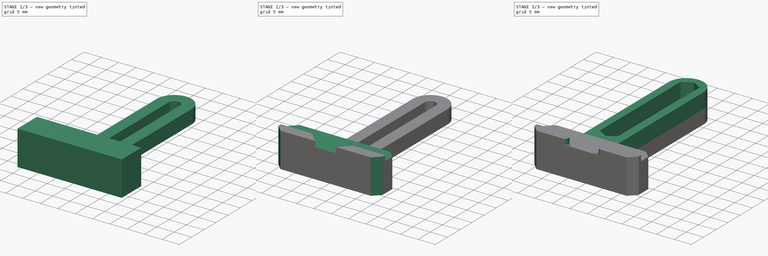
[diagram: build sequence overview — one tinted view per stage of 3, left to right]
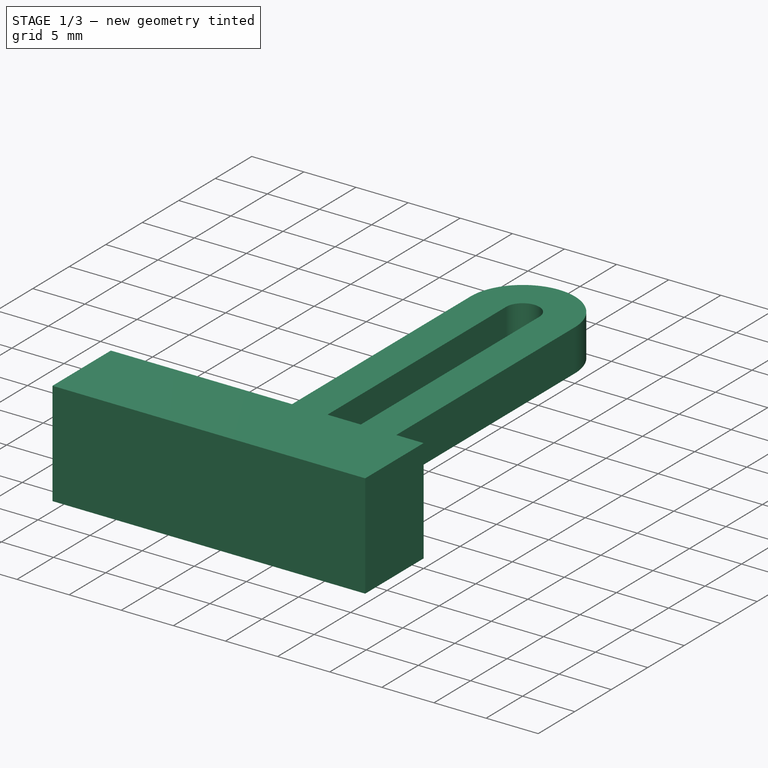
[diagram: stage 1 of 3 — iso view after this stage's code; geometry added in this stage tinted green]
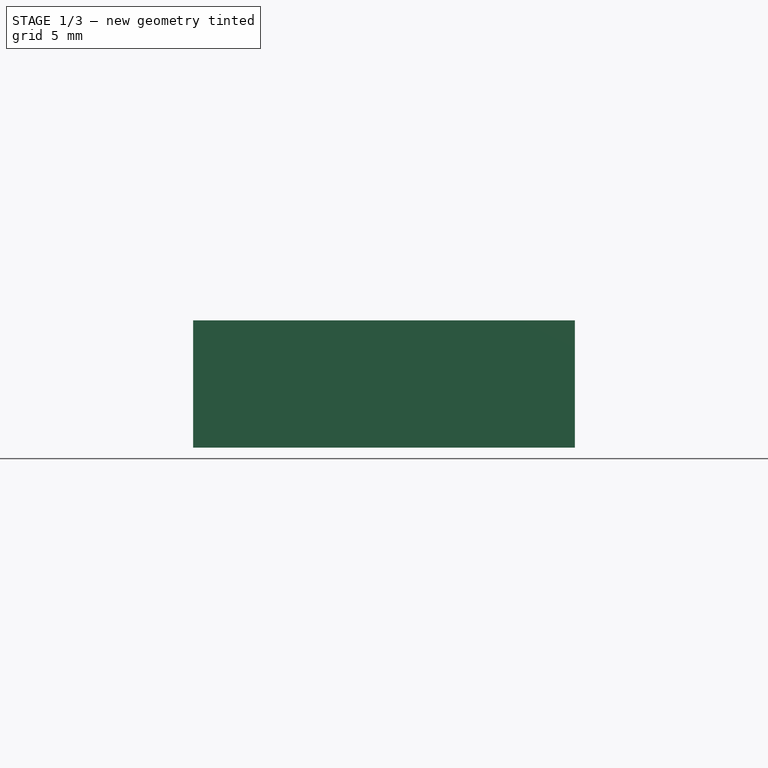
[diagram: stage 1 of 3 — front view after this stage's code; geometry added in this stage tinted green]
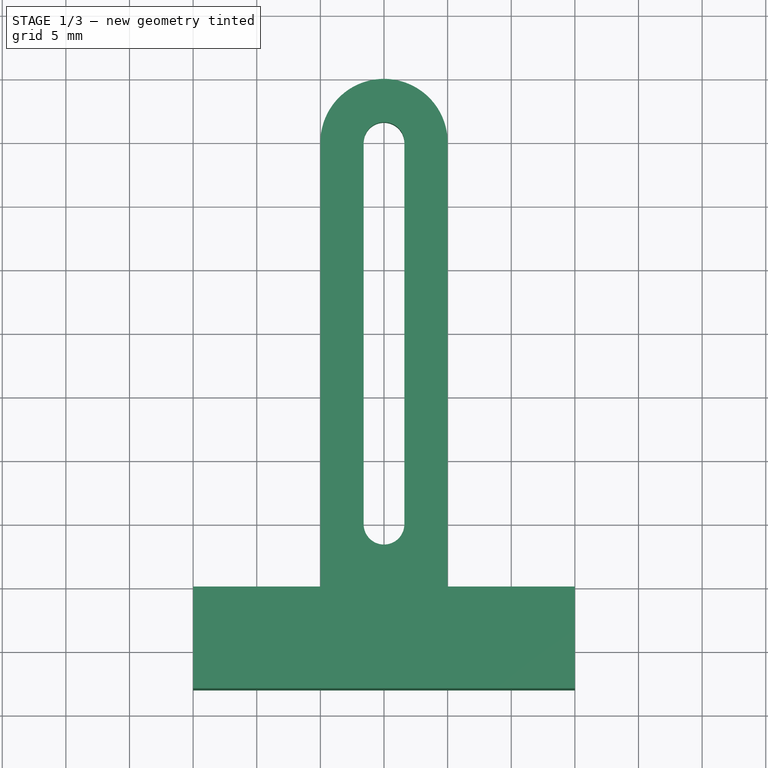
[diagram: stage 1 of 3 — top view after this stage's code; geometry added in this stage tinted green]
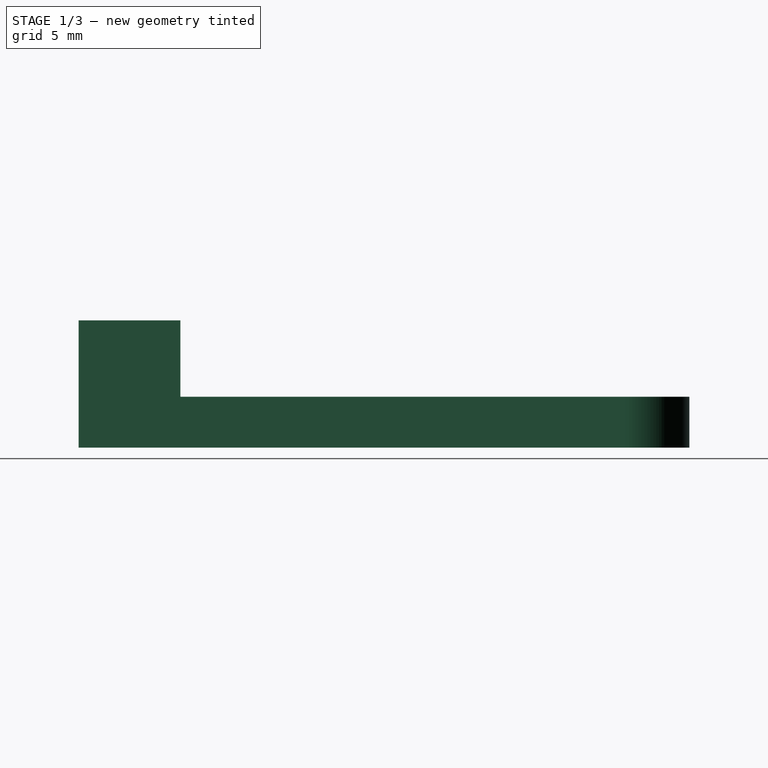
[diagram: stage 1 of 3 — right view after this stage's code; geometry added in this stage tinted green]
FCSTD DOCUMENT  (FreeCAD 0.19R24291 (Git))
Label: board-mount-static
License: All rights reserved
LicenseURL: http://en.wikipedia.org/wiki/All_rights_reserved
objects: Sketcher::SketchObject×4, PartDesign::Pad×3, PartDesign::Plane×1, PartDesign::Pocket×1, PartDesign::Chamfer×1, PartDesign::Fillet×1, PartDesign::Body×1
note: 18 computed .brp shape members not serialized (recipe doc carries the construction recipe); baked Part::Feature solids carry a one-line shape summary decoded from their .brp

FEATURE [Sketcher::SketchObject] Sketch
  FullyConstrained = true
  MapMode = 5
  Support = -> [XY_Plane]
  sketch-geometry (12):
    g0: ArcOfCircle CenterX=0 CenterY=0 CenterZ=0 NormalX=0 NormalY=0 NormalZ=1 AngleXU=0 Radius=1.6 StartAngle=3.14159 EndAngle=6.28319
    g1: ArcOfCircle CenterX=1e-16 CenterY=30 CenterZ=0 NormalX=0 NormalY=0 NormalZ=1 AngleXU=0 Radius=1.6 StartAngle=1.1e-15 EndAngle=3.14159
    g2: LineSegment StartX=1.6 StartY=-4e-16 StartZ=0 EndX=1.6 EndY=30 EndZ=0
    g3: LineSegment StartX=-1.6 StartY=-5e-16 StartZ=0 EndX=-1.6 EndY=30 EndZ=0
    g4: ArcOfCircle CenterX=1e-16 CenterY=30 CenterZ=0 NormalX=0 NormalY=0 NormalZ=1 AngleXU=0 Radius=5 StartAngle=6.28319 EndAngle=9.42478
    g5: LineSegment StartX=-15 StartY=-5 StartZ=0 EndX=-5 EndY=-5 EndZ=0
    g6: LineSegment StartX=5 StartY=-5 StartZ=0 EndX=15 EndY=-5 EndZ=0
    g7: LineSegment StartX=5 StartY=30 StartZ=0 EndX=5 EndY=-5 EndZ=0
    g8: LineSegment StartX=-5 StartY=-5 StartZ=0 EndX=-5 EndY=30 EndZ=0
    g9: LineSegment StartX=-15 StartY=-5 StartZ=0 EndX=-15 EndY=-13 EndZ=0
    g10: LineSegment StartX=-15 StartY=-13 StartZ=0 EndX=15 EndY=-13 EndZ=0
    g11: LineSegment StartX=15 StartY=-13 StartZ=0 EndX=15 EndY=-5 EndZ=0
  constraints (33):
    c: Tangent(g0,g3) = 1.5708
    c: Tangent(g0,g2) = -1.5708
    c: Tangent(g2,g1) = -1.5708
    c: Tangent(g3,g1) = 1.5708
    c: Vertical(g2)
    c: Equal(g0,g1)
    c: Coincident(g0,g-1)
    c: Coincident(g1,g4)
    c: Diameter(g1) = 3.2
    c: Diameter(g4) = 10
    c: DistanceY(g0,g1) = 30
    c: Horizontal(g5)
    c: Horizontal(g6)
    c: Coincident(g7,g4)
    c: Vertical(g7)
    c: DistanceY(g7,g0) = 5
    c: Coincident(g6,g7)
    c: Coincident(g8,g5)
    c: Coincident(g8,g4)
    c: Vertical(g8)
    c: PointOnObject(g5,g6)
    c: Tangent(g8,g4)
    c: Tangent(g7,g4)
    c: Coincident(g5,g9)
    c: Vertical(g9)
    c: Coincident(g9,g10)
    c: Horizontal(g10)
    c: Coincident(g10,g11)
    c: Coincident(g11,g6)
    c: Vertical(g11)
    c: DistanceX(g10,g10) = 30
    c: DistanceY(g9,g9) = 8
    c: DistanceX(g5,g0) = 15
FEATURE [PartDesign::Pad] Pad
  Direction = (1,1,1)
  Length = 4
  Length2 = 100
  Profile = -> Sketch
  Reversed = true
  Type = 0
FEATURE [Sketcher::SketchObject] Sketch001
  FullyConstrained = true
  MapMode = 5
  Support = -> [XY_Plane]
  sketch-geometry (4):
    g0: LineSegment StartX=-15 StartY=-5 StartZ=0 EndX=15 EndY=-5 EndZ=0
    g1: LineSegment StartX=15 StartY=-5 StartZ=0 EndX=15 EndY=-13 EndZ=0
    g2: LineSegment StartX=15 StartY=-13 StartZ=0 EndX=-15 EndY=-13 EndZ=0
    g3: LineSegment StartX=-15 StartY=-13 StartZ=0 EndX=-15 EndY=-5 EndZ=0
  constraints (12):
    c: Coincident(g0,g1)
    c: Coincident(g1,g2)
    c: Coincident(g2,g3)
    c: Coincident(g3,g0)
    c: Horizontal(g0)
    c: Horizontal(g2)
    c: Vertical(g1)
    c: Vertical(g3)
    c: DistanceX(g0,g0) = 30
    c: DistanceY(g1,g1) = 8
    c: DistanceX(g0,g-1) = 15
    c: DistanceY(g0,g-1) = 5
FEATURE [PartDesign::Pad] Pad001
  BaseFeature = -> Pad
  Direction = (1,1,1)
  Length = 6
  Length2 = 100
  Profile = -> Sketch001
  Type = 0
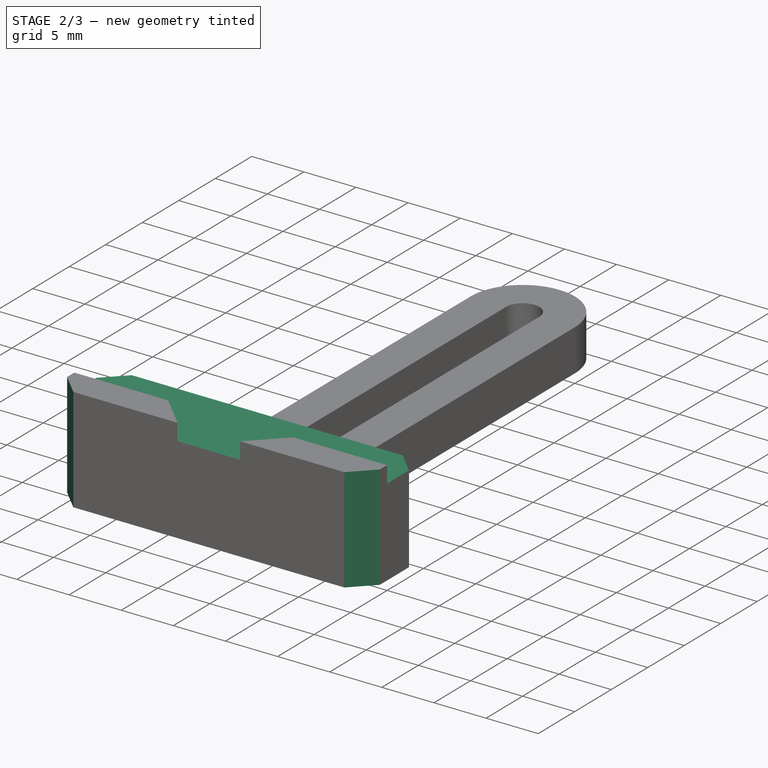
[diagram: stage 2 of 3 — iso view after this stage's code; geometry added in this stage tinted green]
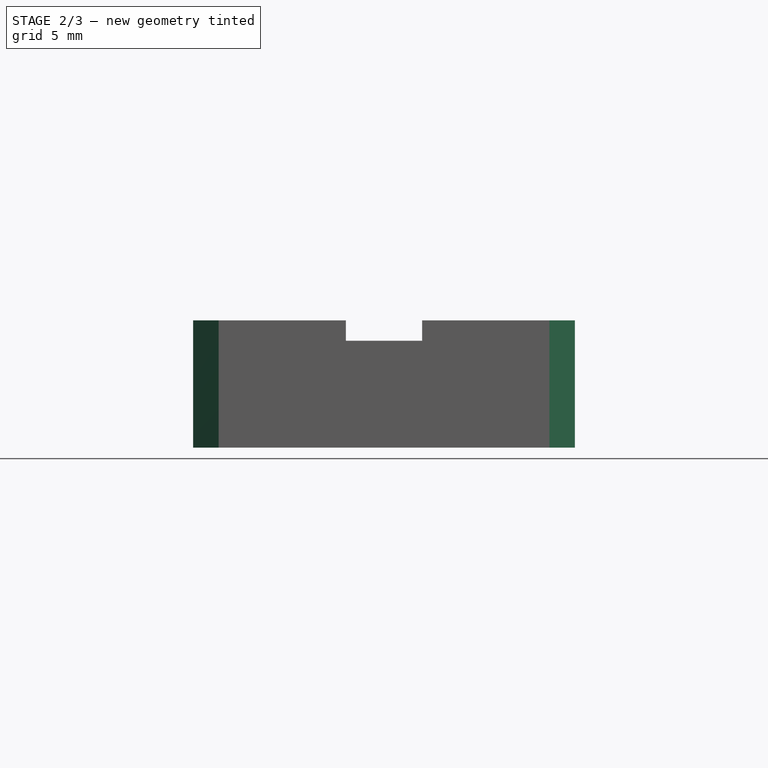
[diagram: stage 2 of 3 — front view after this stage's code; geometry added in this stage tinted green]
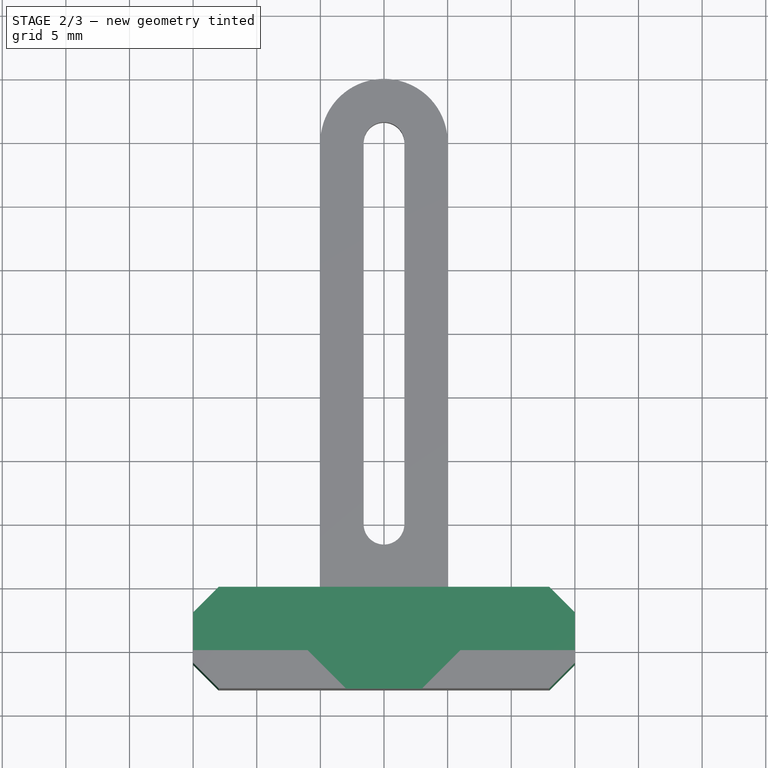
[diagram: stage 2 of 3 — top view after this stage's code; geometry added in this stage tinted green]
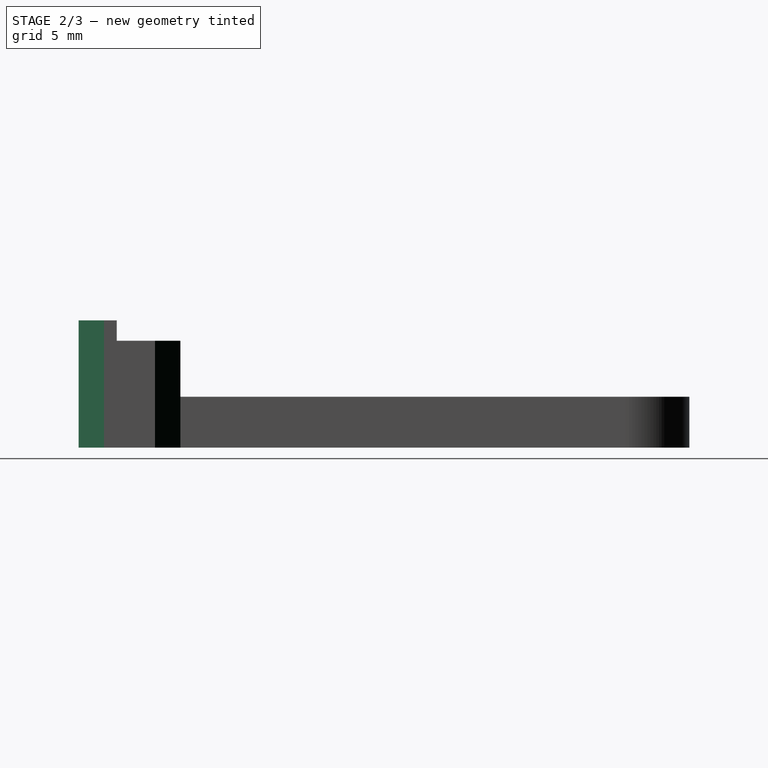
[diagram: stage 2 of 3 — right view after this stage's code; geometry added in this stage tinted green]
FEATURE [PartDesign::Plane] DatumPlane
  Length = 60.9511
  MapMode = 5
  Placement = pos=(0,0,6) rot=(0,0,1;0rad)
  ResizeMode = 0
  Support = -> [Pad001]
  Width = 70.9147
FEATURE [Sketcher::SketchObject] Sketch002
  FullyConstrained = false
  MapMode = 5
  Placement = pos=(0,0,6) rot=(0,0,1;0rad)
  sketch-geometry (7):
    g0: LineSegment StartX=-6 StartY=-10 StartZ=0 EndX=0 EndY=-16 EndZ=0
    g1: LineSegment StartX=0 StartY=-16 StartZ=0 EndX=6 EndY=-10 EndZ=0
    g2: LineSegment StartX=-6 StartY=-10 StartZ=0 EndX=-21.1397 EndY=-10 EndZ=0
    g3: LineSegment StartX=-21.1397 StartY=-10 StartZ=0 EndX=-21.1397 EndY=-1.33734 EndZ=0
    g4: LineSegment StartX=-21.1397 StartY=-1.33734 StartZ=0 EndX=22.3221 EndY=-1.33734 EndZ=0
    g5: LineSegment StartX=22.3221 StartY=-1.33734 StartZ=0 EndX=22.3221 EndY=-10 EndZ=0
    g6: LineSegment StartX=22.3221 StartY=-10 StartZ=0 EndX=6 EndY=-10 EndZ=0
  constraints (18):
    c: PointOnObject(g0,g-2)
    c: Coincident(g0,g1)
    c: Angle(g1,g0) = 1.5708
    c: DistanceY(g0,g-1) = 16
    c: Coincident(g0,g2)
    c: Horizontal(g2)
    c: Coincident(g2,g3)
    c: Coincident(g3,g4)
    c: Horizontal(g4)
    c: Coincident(g4,g5)
    c: Vertical(g5)
    c: Coincident(g5,g6)
    c: Coincident(g6,g1)
    c: Horizontal(g6)
    c: Angle(g1,g-2) = 0.785398
    c: DistanceY(g1,g-1) = 10
    c: PointOnObject(g0,g6)
    c: Vertical(g3)
FEATURE [PartDesign::Pocket] Pocket
  BaseFeature = -> Pad001
  Length = 1.6
  Length2 = 100
  Profile = -> Sketch002
  Type = 0
FEATURE [PartDesign::Chamfer] Chamfer
  Angle = 45
  Base = -> Pocket [Edge30,Edge41,Edge32,Edge53]
  BaseFeature = -> Pocket
  ChamferType = 0
  FlipDirection = false
  Size = 2
  Size2 = 1
  SupportTransform = false
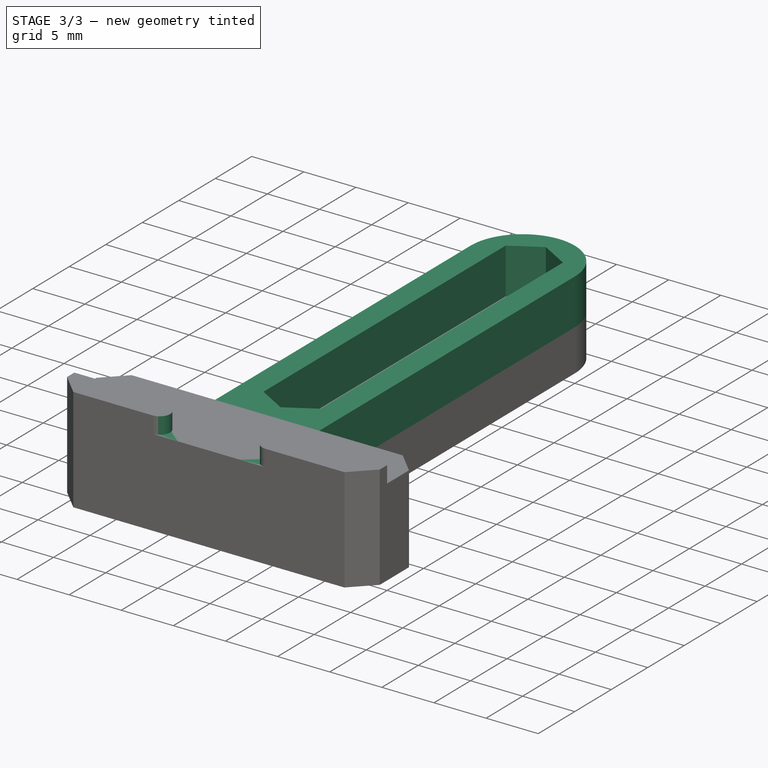
[diagram: stage 3 of 3 — iso view after this stage's code; geometry added in this stage tinted green]
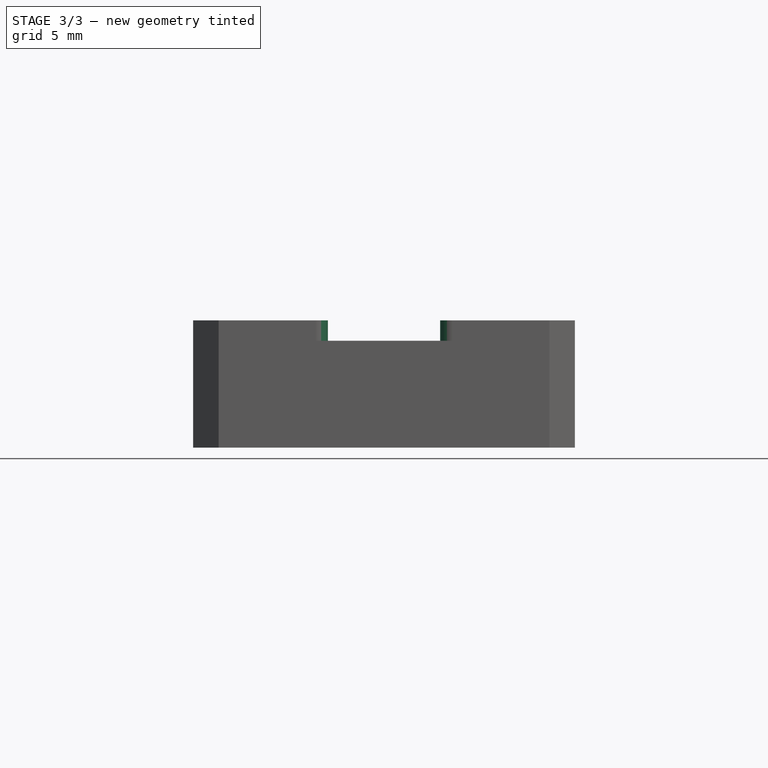
[diagram: stage 3 of 3 — front view after this stage's code; geometry added in this stage tinted green]
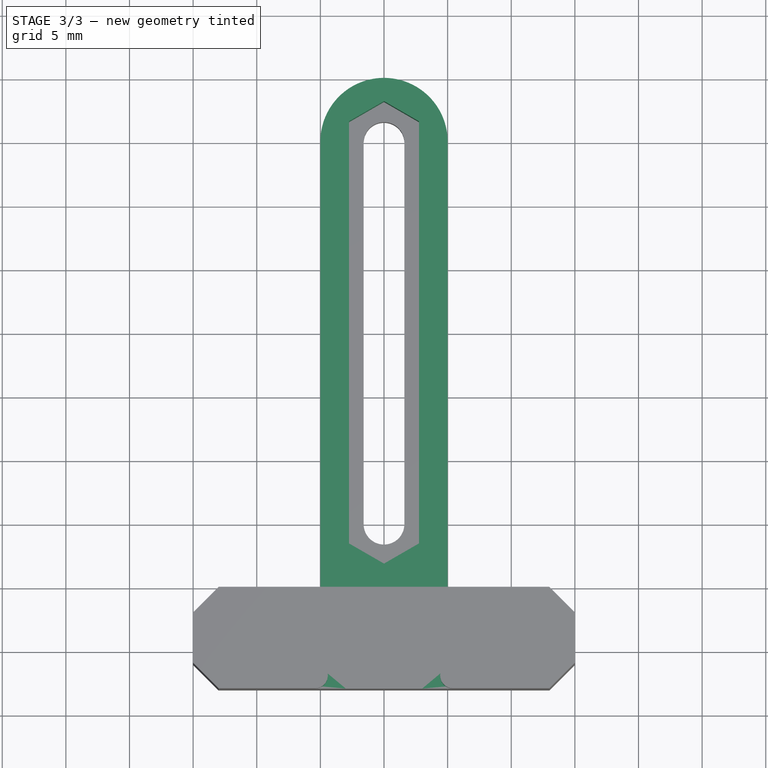
[diagram: stage 3 of 3 — top view after this stage's code; geometry added in this stage tinted green]
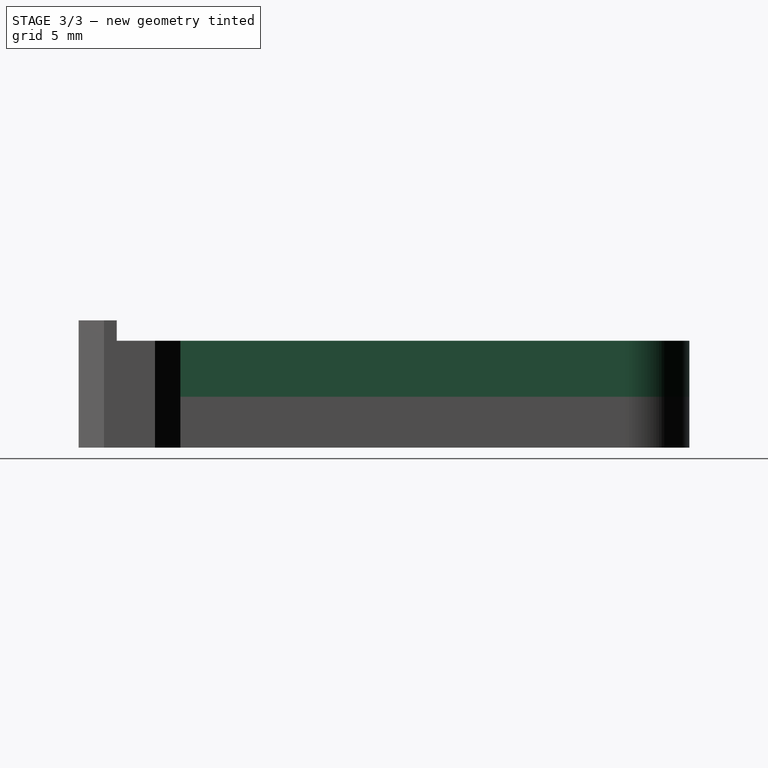
[diagram: stage 3 of 3 — right view after this stage's code; geometry added in this stage tinted green]
FEATURE [PartDesign::Fillet] Fillet
  Base = -> Chamfer [Edge68,Edge70,Edge80,Edge75]
  BaseFeature = -> Chamfer
  Radius = 1
  SupportTransform = false
FEATURE [Sketcher::SketchObject] Sketch003
  FullyConstrained = false
  MapMode = 5
  Support = -> [XY_Plane]
  sketch-geometry (13):
    g0: LineSegment StartX=-2.75 StartY=-1.58771 StartZ=0 EndX=0 EndY=-3.17543 EndZ=0
    g1: LineSegment StartX=0 StartY=-3.17543 StartZ=0 EndX=2.75 EndY=-1.58771 EndZ=0
    g2: LineSegment StartX=2.75 StartY=-1.58771 StartZ=0 EndX=2.75 EndY=31.5877 EndZ=0
    g3: LineSegment StartX=2.75 StartY=31.5877 StartZ=0 EndX=0 EndY=33.1754 EndZ=0
    g4: LineSegment StartX=0 StartY=33.1754 StartZ=0 EndX=-2.75 EndY=31.5877 EndZ=0
    g5: LineSegment StartX=-2.75 StartY=31.5877 StartZ=0 EndX=-2.75 EndY=-1.58771 EndZ=0
    g6: LineSegment StartX=-1.375 StartY=-2.38157 StartZ=0 EndX=0 EndY=0 EndZ=0
    g7: Circle CenterX=0 CenterY=30 CenterZ=0 NormalX=0 NormalY=0 NormalZ=1 AngleXU=0 Radius=1.60552
    g8: LineSegment StartX=-1.375 StartY=32.3816 StartZ=0 EndX=0 EndY=30 EndZ=0
    g9: ArcOfCircle CenterX=0 CenterY=30 CenterZ=0 NormalX=0 NormalY=0 NormalZ=1 AngleXU=0 Radius=5 StartAngle=6.28318 EndAngle=9.42478
    g10: LineSegment StartX=-5 StartY=30 StartZ=0 EndX=-5 EndY=-5 EndZ=0
    g11: LineSegment StartX=-5 StartY=-5 StartZ=0 EndX=5 EndY=-5 EndZ=0
    g12: LineSegment StartX=5 StartY=-5 StartZ=0 EndX=5 EndY=30 EndZ=0
  constraints (35):
    c: PointOnObject(g0,g-2)
    c: Coincident(g0,g1)
    c: Coincident(g1,g2)
    c: Vertical(g2)
    c: Coincident(g2,g3)
    c: PointOnObject(g3,g-2)
    c: Coincident(g3,g4)
    c: Coincident(g4,g5)
    c: Coincident(g5,g0)
    c: Vertical(g5)
    c: DistanceX(g4,g2) = 5.5
    c: Angle(g4,g3) = 2.0944
    c: Angle(g-2,g3) = 1.0472
    c: DistanceX(g4,g3) = 2.75
    c: Angle(g1,g0) = 2.0944
    c: Angle(g1,g-2) = 1.0472
    c: Coincident(g-1,g6)
    c: Perpendicular(g0,g6)
    c: Symmetric(g0,g0,g6)
    c: PointOnObject(g7,g-2)
    c: DistanceY(g-1,g7) = 30
    c: Coincident(g8,g7)
    c: Perpendicular(g4,g8)
    c: Symmetric(g4,g3,g8)
    c: Tangent(g9,g10) = -1.5708
    c: Coincident(g10,g11)
    c: Horizontal(g11)
    c: Coincident(g11,g12)
    c: Coincident(g12,g9)
    c: Vertical(g12)
    c: Diameter(g9) = 10
    c: Vertical(g10)
    c: DistanceY(g10,g-1) = 5
    c: Coincident(g9,g7)
    c: Tangent(g9,g12)
FEATURE [PartDesign::Pad] Pad002
  BaseFeature = -> Fillet
  Direction = (1,1,1)
  Length = 4.4
  Length2 = 100
  Profile = -> Sketch003
  Type = 0
FEATURE [PartDesign::Body] Body
  Group = -> [Sketch,Pad,Sketch001,Pad001,DatumPlane,Sketch002,Pocket,Chamfer,Fillet,Sketch003,Pad002]
  Origin = -> Origin
  Tip = -> Pad002
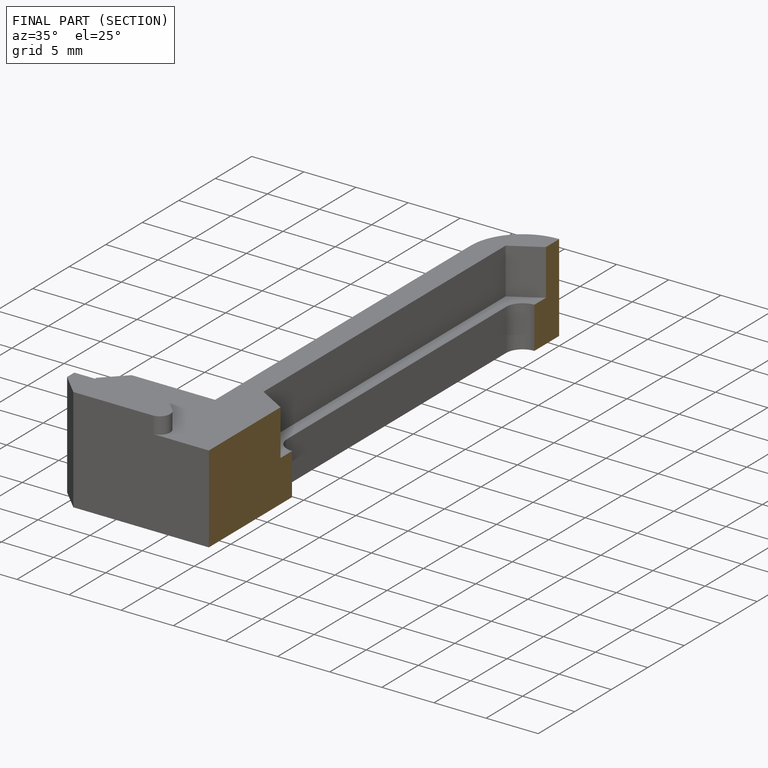
[diagram: finished part — half-section view (interior)]
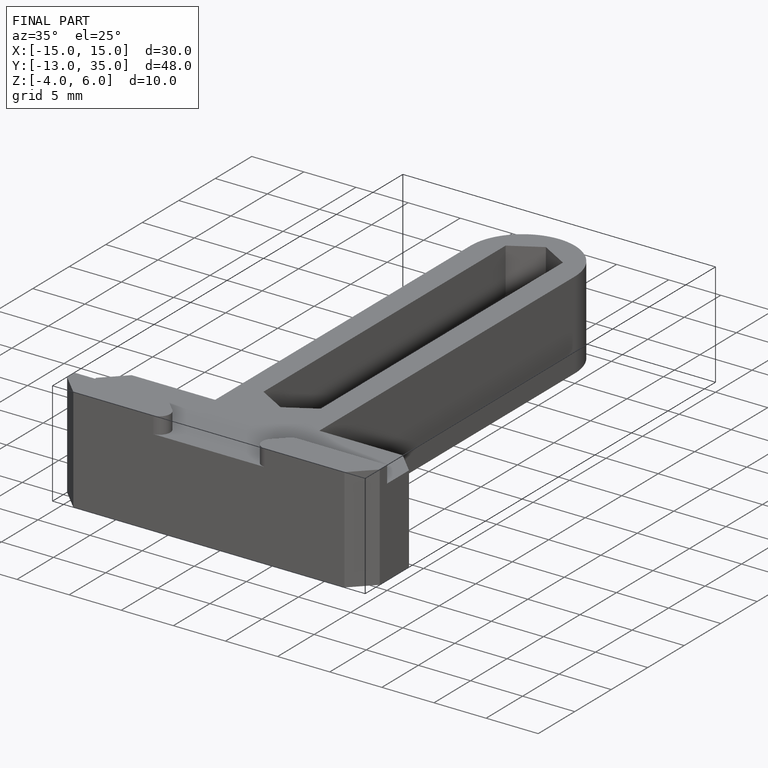
[diagram: finished part — iso view with bounding-box wireframe]
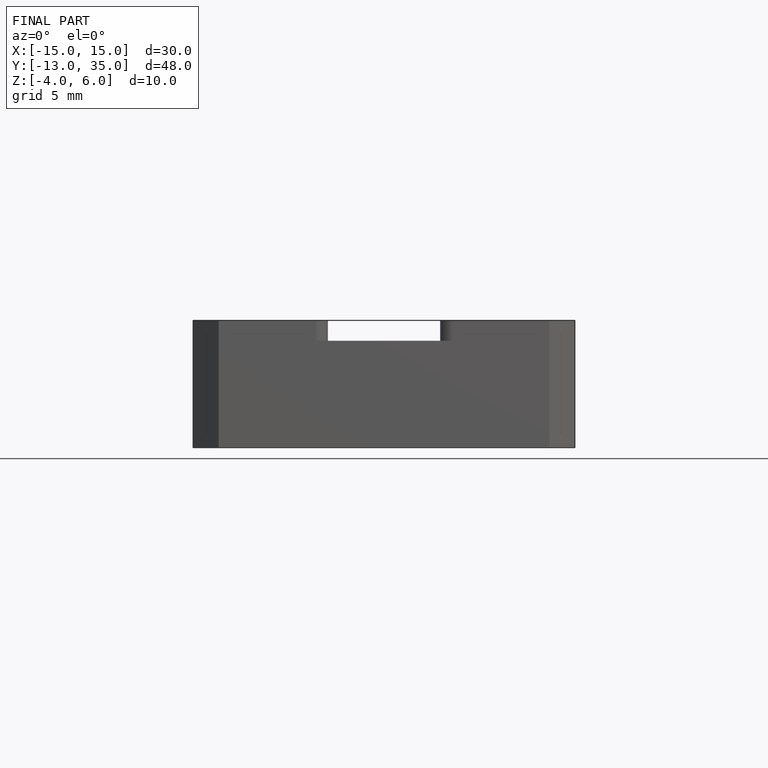
[diagram: finished part — front view with bounding-box wireframe]
